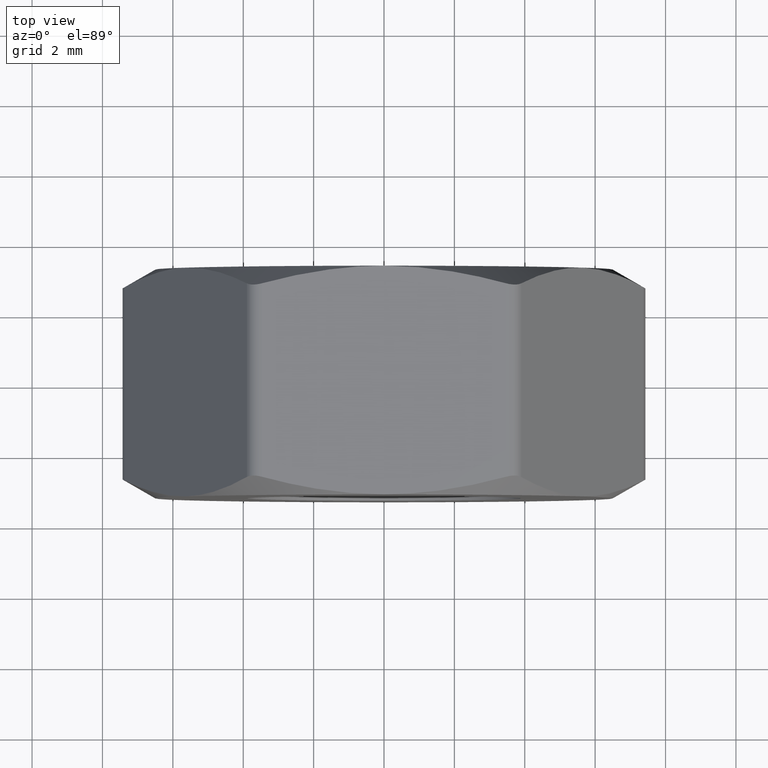
[diagram: clean part render]
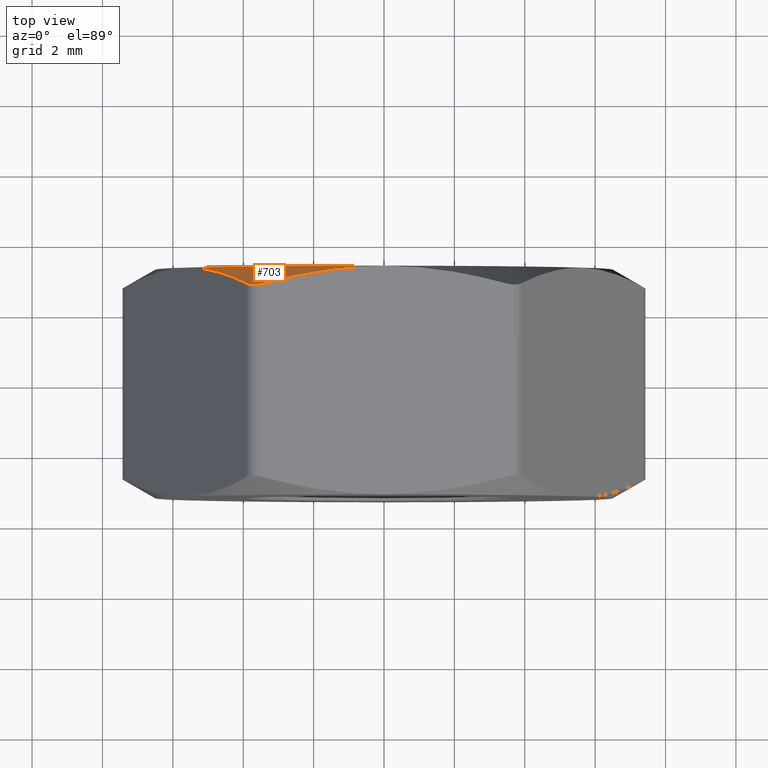
[diagram: same view with one face highlighted and labeled with its STEP entity id]
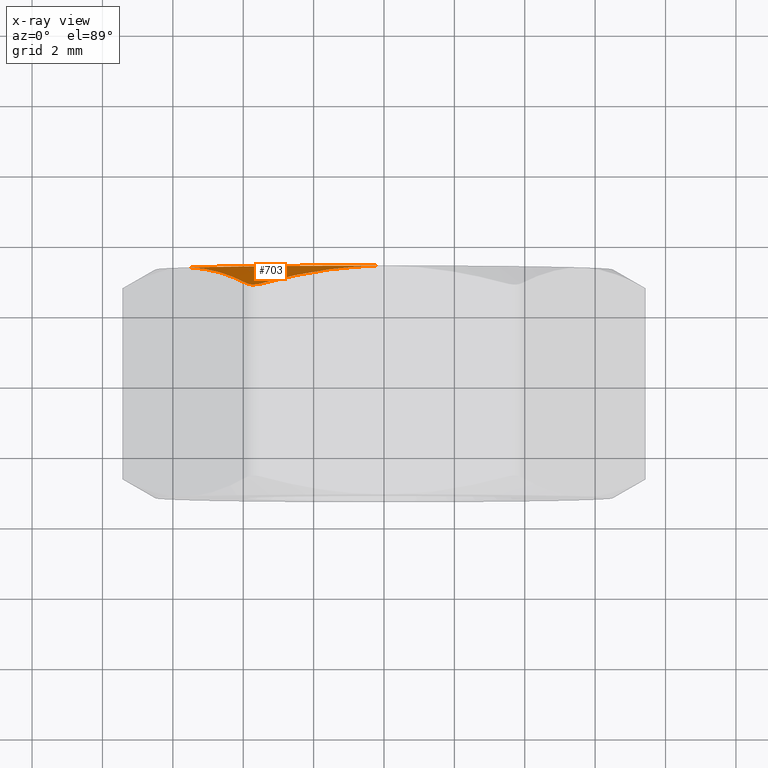
[diagram: x-ray of the same camera — body ghosted, the highlighted face saturated]
A machine part, top view. The second image highlights one B-rep face of the part: STEP entity #703.
The next image is the same camera in x-ray: the body ghosted, the highlighted face saturated — about 0% of this face is hidden behind the body in this view.
In plain terms, the highlighted conical surface has half-angle 60 deg.
Its self-contained STEP definition (entity closure, byte-faithful):
#41 = CARTESIAN_POINT ( 'NONE',  ( -3.464101615138759800, 2.750326475674608400, 6.499999999999997300 ) ) ;
#55 = CARTESIAN_POINT ( 'NONE',  ( -3.386450907888041400E-016, 3.249999999999998700, 0.0000000000000000000 ) ) ;
#60 = DIRECTION ( 'NONE',  ( 1.041984894734782400E-016, -1.000000000000000000, -0.0000000000000000000 ) ) ;
#85 = CARTESIAN_POINT ( 'NONE',  ( -5.039851529400913900, 3.250000000000002200, 4.270721088473902000 ) ) ;
#129 = CARTESIAN_POINT ( 'NONE',  ( -3.897114317028936600, 2.750326475674319300, 6.250000000001791500 ) ) ;
#148 = CARTESIAN_POINT ( 'NONE',  ( -3.464101615138759800, 2.750326475674608400, 6.499999999999997300 ) ) ;
#173 = CARTESIAN_POINT ( 'NONE',  ( -1.165154007745679700, 3.203824239726179400, 6.499999999999999100 ) ) ;
#192 = CIRCLE ( 'NONE', #1007, 6.499999999999997300 ) ;
#274 = ORIENTED_EDGE ( 'NONE', *, *, #280, .T. ) ;
#276 = VERTEX_POINT ( 'NONE', #1290 ) ;
#280 = EDGE_CURVE ( 'NONE', #1433, #433, #308, .T. ) ;
#308 = B_SPLINE_CURVE_WITH_KNOTS ( 'NONE', 3,
 ( #129, #1123, #523, #1041, #1033, #905 ),
 .UNSPECIFIED., .F., .F.,
 ( 4, 2, 4 ),
 ( 2.009003396756986000E-015, 0.0002636355533731606300, 0.0005272711067443122300 ),
 .UNSPECIFIED. ) ;
#326 = CARTESIAN_POINT ( 'NONE',  ( -4.464303344479558800, 3.058352876056138500, 5.267599786961735500 ) ) ;
#380 = EDGE_CURVE ( 'NONE', #1017, #433, #1444, .T. ) ;
#401 = CARTESIAN_POINT ( 'NONE',  ( -0.5843172141143628800, 3.249999999999999600, 6.499999999999998200 ) ) ;
#433 = VERTEX_POINT ( 'NONE', #41 ) ;
#434 = DIRECTION ( 'NONE',  ( 1.000000000000000000, 1.334402673828313300E-016, 0.0000000000000000000 ) ) ;
#523 = CARTESIAN_POINT ( 'NONE',  ( -3.790687565813048100, 2.714143658310134400, 6.388705627901935600 ) ) ;
#569 = CARTESIAN_POINT ( 'NONE',  ( -5.629165124598849000, 3.249999999999998200, 3.250000000000001800 ) ) ;
#591 = ORIENTED_EDGE ( 'NONE', *, *, #860, .F. ) ;
#655 = CONICAL_SURFACE ( 'NONE', #1096, 6.499999999999999100, 1.047197551196603000 ) ;
#679 = EDGE_CURVE ( 'NONE', #1017, #276, #192, .T. ) ;
#703 = ADVANCED_FACE ( 'NONE', ( #1486 ), #655, .T. ) ;
#806 = DIRECTION ( 'NONE',  ( -0.0000000000000000000, -1.000000000000000000, -0.0000000000000000000 ) ) ;
#807 = B_SPLINE_CURVE_WITH_KNOTS ( 'NONE', 3,
 ( #1073, #326, #85, #569 ),
 .UNSPECIFIED., .F., .F.,
 ( 4, 4 ),
 ( 0.0002974810109325090100, 0.003797433802554435000 ),
 .UNSPECIFIED. ) ;
#810 = DIRECTION ( 'NONE',  ( 0.0000000000000000000, 0.0000000000000000000, 1.000000000000000000 ) ) ;
#860 = EDGE_CURVE ( 'NONE', #1433, #276, #807, .T. ) ;
#905 = CARTESIAN_POINT ( 'NONE',  ( -3.464101615138759800, 2.750326475674608400, 6.499999999999997300 ) ) ;
#919 = ORIENTED_EDGE ( 'NONE', *, *, #679, .T. ) ;
#1007 = AXIS2_PLACEMENT_3D ( 'NONE', #1574, #806, #810 ) ;
#1017 = VERTEX_POINT ( 'NONE', #1247 ) ;
#1033 = CARTESIAN_POINT ( 'NONE',  ( -3.550077289892498800, 2.726980839270278300, 6.499999999999991100 ) ) ;
#1041 = CARTESIAN_POINT ( 'NONE',  ( -3.638281588876210600, 2.714059782672265400, 6.476877117389367600 ) ) ;
#1047 = CARTESIAN_POINT ( 'NONE',  ( -2.320763838972456700, 3.031023087752012100, 6.499999999999993800 ) ) ;
#1073 = CARTESIAN_POINT ( 'NONE',  ( -3.897114317028936600, 2.750326475674319300, 6.250000000001791500 ) ) ;
#1096 = AXIS2_PLACEMENT_3D ( 'NONE', #55, #60, #434 ) ;
#1123 = CARTESIAN_POINT ( 'NONE',  ( -3.854141261532511900, 2.726988866944860800, 6.324431515478075900 ) ) ;
#1158 = EDGE_LOOP ( 'NONE', ( #591, #274, #1616, #919 ) ) ;
#1247 = CARTESIAN_POINT ( 'NONE',  ( -3.386450907888040000E-016, 3.249999999999998700, 6.499999999999999100 ) ) ;
#1290 = CARTESIAN_POINT ( 'NONE',  ( -5.629165124598849000, 3.249999999999998200, 3.250000000000001800 ) ) ;
#1297 = CARTESIAN_POINT ( 'NONE',  ( -3.386450907888040000E-016, 3.249999999999998700, 6.499999999999999100 ) ) ;
#1302 = CARTESIAN_POINT ( 'NONE',  ( -2.898327047151626300, 2.903955596805490200, 6.499999999999997300 ) ) ;
#1433 = VERTEX_POINT ( 'NONE', #1564 ) ;
#1444 = B_SPLINE_CURVE_WITH_KNOTS ( 'NONE', 3,
 ( #1297, #401, #173, #1047, #1302, #148 ),
 .UNSPECIFIED., .F., .F.,
 ( 4, 2, 4 ),
 ( 0.006539901453184518400, 0.008284478935818398100, 0.01002905641845228000 ),
 .UNSPECIFIED. ) ;
#1486 = FACE_OUTER_BOUND ( 'NONE', #1158, .T. ) ;
#1564 = CARTESIAN_POINT ( 'NONE',  ( -3.897114317028936600, 2.750326475674319300, 6.250000000001791500 ) ) ;
#1574 = CARTESIAN_POINT ( 'NONE',  ( -3.386450907888041400E-016, 3.250000000000000000, 1.173101005959981900E-015 ) ) ;
#1616 = ORIENTED_EDGE ( 'NONE', *, *, #380, .F. ) ;